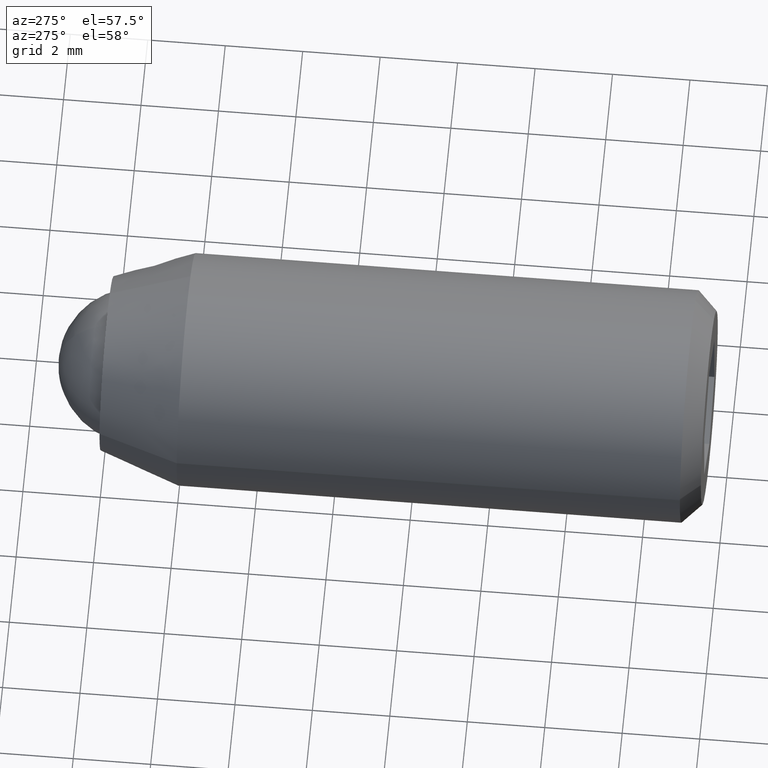
[diagram: clean part render]
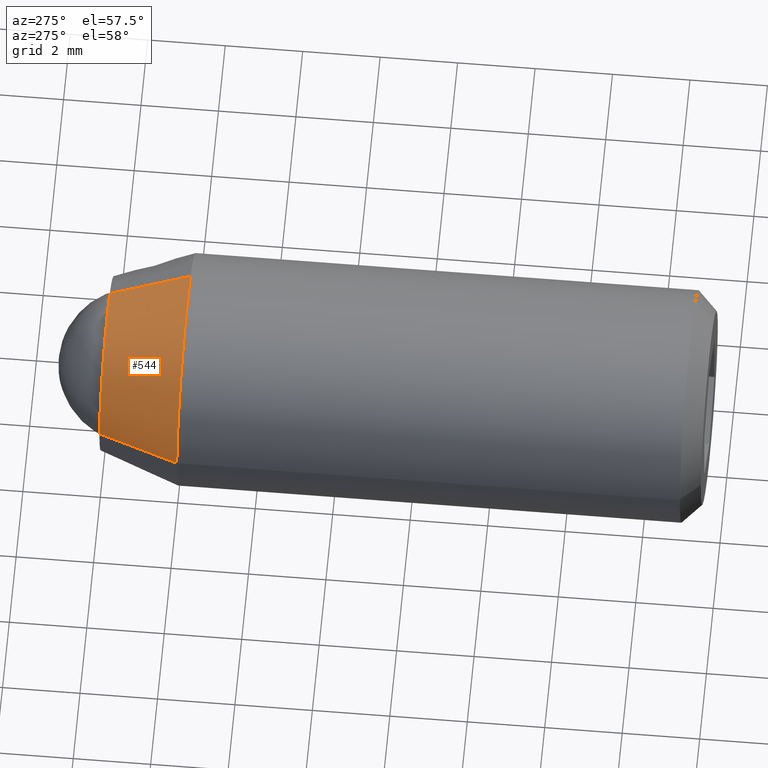
[diagram: same view with one face highlighted and labeled with its STEP entity id]
A machine part, auxiliary view. The second image highlights one B-rep face of the part: STEP entity #544.
In plain terms, the highlighted face is a freeform B-spline surface patch.
Its self-contained STEP definition (entity closure, byte-faithful):
#450=CARTESIAN_POINT('',(0.784547605361196,0.051515200000000,2.088770360145418));
#451=CARTESIAN_POINT('',(0.470770214140005,0.051515200000000,2.206625968208495));
#452=CARTESIAN_POINT('',(0.136214553837150,0.051515200000000,2.227088268978792));
#453=CARTESIAN_POINT('',(-2.090873715141643,0.051515200000000,2.363302822815943));
#454=CARTESIAN_POINT('',(-2.227088268978793,0.051515200000000,0.136214553837149));
#455=CARTESIAN_POINT('',(1.061611581120054,-2.113411080000000,2.826422245734585));
#456=CARTESIAN_POINT('',(0.637023308671380,-2.113411080000000,2.985898710342624));
#457=CARTESIAN_POINT('',(0.184318895223757,-2.113411080000000,3.013587298422769));
#458=CARTESIAN_POINT('',(-2.829268403199012,-2.113411080000000,3.197906193646526));
#459=CARTESIAN_POINT('',(-3.013587298422770,-2.113411080000000,0.184318895223756));
#467=(BOUNDED_SURFACE()B_SPLINE_SURFACE(2,1,((#450,#455),(#451,#456),(#452,#457),(#453,#458),(#454,#459)),.UNSPECIFIED.,.F.,.F.,.U.)B_SPLINE_SURFACE_WITH_KNOTS((3,2,3),(2,2),(0.0,1.000481083216914,6.002886499301483),(0.0,2.303866434672635),.UNSPECIFIED.)GEOMETRIC_REPRESENTATION_ITEM()RATIONAL_B_SPLINE_SURFACE(((0.906274169979695,0.906274169979695),(0.941421356237309,0.941421356237309),(1.0,1.0),(0.707106781186548,0.707106781186548),(1.0,1.0)))REPRESENTATION_ITEM('')SURFACE());
#468=CARTESIAN_POINT('',(1.054853923181420,-2.060608000001297,2.808430736327957));
#469=VERTEX_POINT('',#468);
#470=CARTESIAN_POINT('',(0.0,-2.060608000000000,2.999999999999999));
#471=VERTEX_POINT('',#470);
#472=CARTESIAN_POINT('',(1.054853923181420,-2.060608000001297,2.808430736327958));
#473=CARTESIAN_POINT('',(0.544822158207495,-2.060608000000000,2.999999999999999));
#474=CARTESIAN_POINT('',(0.0,-2.060608000000000,2.999999999999999));
#482=(BOUNDED_CURVE()B_SPLINE_CURVE(2,(#472,#473,#474),.UNSPECIFIED.,.F.,.U.)B_SPLINE_CURVE_WITH_KNOTS((3,3),(0.440284170898174,0.500000000000000),.UNSPECIFIED.)CURVE()GEOMETRIC_REPRESENTATION_ITEM()RATIONAL_B_SPLINE_CURVE((0.893499554634866,0.930038554401009,1.0))REPRESENTATION_ITEM(''));
#483=EDGE_CURVE('',#469,#471,#482,.T.);
#484=ORIENTED_EDGE('',*,*,#483,.F.);
#485=CARTESIAN_POINT('',(0.791140442385241,-8.117313E-013,2.106323052246216));
#486=VERTEX_POINT('',#485);
#487=CARTESIAN_POINT('',(0.791140442385241,-8.117313E-013,2.106323052246216));
#488=CARTESIAN_POINT('',(1.054853923181420,-2.060608000001297,2.808430736327957));
#489=QUASI_UNIFORM_CURVE('',1,(#487,#488),.UNSPECIFIED.,.F.,.U.);
#490=EDGE_CURVE('',#486,#469,#489,.T.);
#491=ORIENTED_EDGE('',*,*,#490,.F.);
#492=CARTESIAN_POINT('',(0.0,0.0,2.249999999999999));
#493=VERTEX_POINT('',#492);
#494=CARTESIAN_POINT('',(0.791140442385241,-8.117313E-013,2.106323052246217));
#495=CARTESIAN_POINT('',(0.408616618654734,0.0,2.250000000000000));
#496=CARTESIAN_POINT('',(0.0,0.0,2.249999999999999));
#504=(BOUNDED_CURVE()B_SPLINE_CURVE(2,(#494,#495,#496),.UNSPECIFIED.,.F.,.U.)B_SPLINE_CURVE_WITH_KNOTS((3,3),(0.440284170898295,0.500000000000000),.UNSPECIFIED.)CURVE()GEOMETRIC_REPRESENTATION_ITEM()RATIONAL_B_SPLINE_CURVE((0.893499554635014,0.930038554401150,1.0))REPRESENTATION_ITEM(''));
#505=EDGE_CURVE('',#486,#493,#504,.T.);
#506=ORIENTED_EDGE('',*,*,#505,.T.);
#507=CARTESIAN_POINT('',(-2.245803296449280,-2.592159E-012,0.137359213967615));
#508=VERTEX_POINT('',#507);
#509=CARTESIAN_POINT('',(0.0,0.0,2.249999999999999));
#510=CARTESIAN_POINT('',(-2.116588650511138,0.0,2.250000000000000));
#511=CARTESIAN_POINT('',(-2.245803296449280,-2.592159E-012,0.137359213967615));
#519=(BOUNDED_CURVE()B_SPLINE_CURVE(2,(#509,#510,#511),.UNSPECIFIED.,.F.,.U.)B_SPLINE_CURVE_WITH_KNOTS((3,3),(0.500000000000000,0.739332962239798),.UNSPECIFIED.)CURVE()GEOMETRIC_REPRESENTATION_ITEM()RATIONAL_B_SPLINE_CURVE((1.0,0.719603993285709,0.976072041668550))REPRESENTATION_ITEM(''));
#520=EDGE_CURVE('',#493,#508,#519,.T.);
#521=ORIENTED_EDGE('',*,*,#520,.T.);
#522=CARTESIAN_POINT('',(-2.994404511037095,-2.060607997349454,0.183143709914920));
#523=VERTEX_POINT('',#522);
#524=CARTESIAN_POINT('',(-2.245803296449280,-2.592159E-012,0.137359213967615));
#525=CARTESIAN_POINT('',(-2.994404511037095,-2.060607997349454,0.183143709914920));
#526=QUASI_UNIFORM_CURVE('',1,(#524,#525),.UNSPECIFIED.,.F.,.U.);
#527=EDGE_CURVE('',#508,#523,#526,.T.);
#528=ORIENTED_EDGE('',*,*,#527,.T.);
#529=CARTESIAN_POINT('',(0.0,-2.060608000000000,2.999999999999999));
#530=CARTESIAN_POINT('',(-2.822120002894594,-2.060607999999999,2.999999999999998));
#531=CARTESIAN_POINT('',(-2.994404511037095,-2.060607997349454,0.183143709914921));
#539=(BOUNDED_CURVE()B_SPLINE_CURVE(2,(#529,#530,#531),.UNSPECIFIED.,.F.,.U.)B_SPLINE_CURVE_WITH_KNOTS((3,3),(0.500000000000000,0.739333072223147),.UNSPECIFIED.)CURVE()GEOMETRIC_REPRESENTATION_ITEM()RATIONAL_B_SPLINE_CURVE((1.0,0.719603864432200,0.976072277383916))REPRESENTATION_ITEM(''));
#540=EDGE_CURVE('',#471,#523,#539,.T.);
#541=ORIENTED_EDGE('',*,*,#540,.F.);
#542=EDGE_LOOP('',(#484,#491,#506,#521,#528,#541));
#543=FACE_OUTER_BOUND('',#542,.T.);
#544=ADVANCED_FACE('',(#543),#467,.T.);